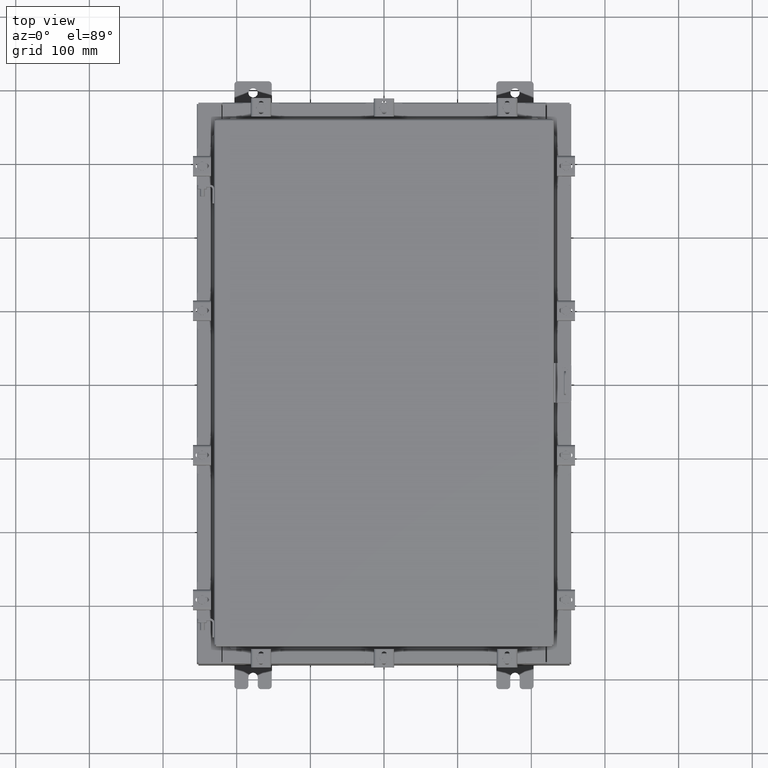
[diagram: clean part render]
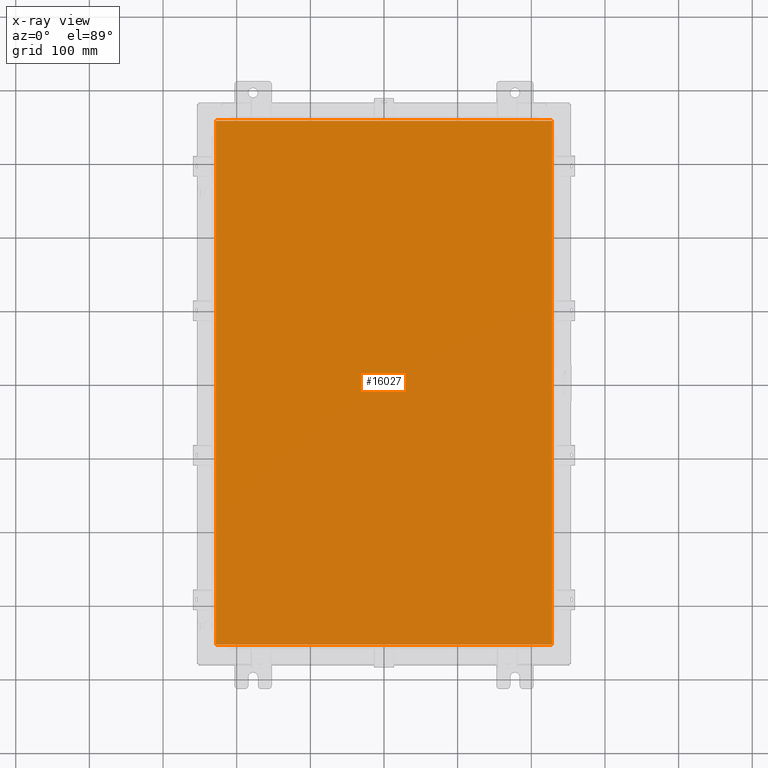
[diagram: x-ray — body ghosted, one internal face saturated and labeled with its STEP entity id]
A machine part, top view, then the same camera in x-ray: the body is ghosted and one INTERNAL B-rep face — a face not visible from any outside direction — is saturated and labeled: STEP entity #16027.
In plain terms, the highlighted planar face has unit normal (0, 0, -1).
Its self-contained STEP definition (entity closure, byte-faithful):
#23 = DIRECTION ( 'NONE',  ( 1.000000000000000000, -0.0000000000000000000, -0.0000000000000000000 ) ) ;
#2522 = CARTESIAN_POINT ( 'NONE',  ( 0.0000000000000000000, 0.0000000000000000000, -0.07470000000000000300 ) ) ;
#2708 = CARTESIAN_POINT ( 'NONE',  ( 8.990300000000001300, -14.00629999999999800, -0.07470000000000000300 ) ) ;
#3035 = CARTESIAN_POINT ( 'NONE',  ( -8.990299999999997700, 14.00630000000000100, -0.07470000000000019700 ) ) ;
#3061 = DIRECTION ( 'NONE',  ( -1.000000000000000000, -0.0000000000000000000, -0.0000000000000000000 ) ) ;
#3554 = DIRECTION ( 'NONE',  ( 0.0000000000000000000, 1.000000000000000000, 0.0000000000000000000 ) ) ;
#4026 = ORIENTED_EDGE ( 'NONE', *, *, #22681, .F. ) ;
#6102 = DIRECTION ( 'NONE',  ( -1.000000000000000000, 0.0000000000000000000, -0.0000000000000000000 ) ) ;
#6956 = AXIS2_PLACEMENT_3D ( 'NONE', #2522, #16801, #6102 ) ;
#7160 = CARTESIAN_POINT ( 'NONE',  ( 8.990300000000001300, -14.00629999999999800, -0.07470000000000019700 ) ) ;
#7797 = VERTEX_POINT ( 'NONE', #14455 ) ;
#9289 = VERTEX_POINT ( 'NONE', #2708 ) ;
#9440 = VECTOR ( 'NONE', #19101, 39.37007874015748100 ) ;
#9695 = VECTOR ( 'NONE', #3554, 39.37007874015748100 ) ;
#10901 = LINE ( 'NONE', #17912, #15114 ) ;
#10984 = EDGE_LOOP ( 'NONE', ( #4026, #21928, #17807, #22001 ) ) ;
#11471 = VERTEX_POINT ( 'NONE', #13308 ) ;
#11726 = VECTOR ( 'NONE', #3061, 39.37007874015748100 ) ;
#11798 = EDGE_CURVE ( 'NONE', #19064, #9289, #10901, .T. ) ;
#11960 = CARTESIAN_POINT ( 'NONE',  ( 8.990300000000001300, 14.00629999999999800, -0.07470000000000019700 ) ) ;
#12289 = LINE ( 'NONE', #11960, #11726 ) ;
#13308 = CARTESIAN_POINT ( 'NONE',  ( 8.990300000000001300, 14.00629999999999800, -0.07470000000000000300 ) ) ;
#13391 = EDGE_CURVE ( 'NONE', #11471, #7797, #12289, .T. ) ;
#13398 = CARTESIAN_POINT ( 'NONE',  ( -8.990299999999996000, -14.00629999999999600, -0.07470000000000000300 ) ) ;
#14179 = LINE ( 'NONE', #3035, #9440 ) ;
#14455 = CARTESIAN_POINT ( 'NONE',  ( -8.990299999999997700, 14.00629999999999800, -0.07470000000000000300 ) ) ;
#15114 = VECTOR ( 'NONE', #23, 39.37007874015748100 ) ;
#16027 = ADVANCED_FACE ( 'NONE', ( #18330 ), #22143, .T. ) ;
#16801 = DIRECTION ( 'NONE',  ( 0.0000000000000000000, 0.0000000000000000000, -1.000000000000000000 ) ) ;
#17807 = ORIENTED_EDGE ( 'NONE', *, *, #22401, .F. ) ;
#17912 = CARTESIAN_POINT ( 'NONE',  ( -8.990299999999996000, -14.00629999999999800, -0.07469999999999800400 ) ) ;
#18330 = FACE_OUTER_BOUND ( 'NONE', #10984, .T. ) ;
#19064 = VERTEX_POINT ( 'NONE', #13398 ) ;
#19101 = DIRECTION ( 'NONE',  ( 0.0000000000000000000, -1.000000000000000000, 0.0000000000000000000 ) ) ;
#21928 = ORIENTED_EDGE ( 'NONE', *, *, #11798, .F. ) ;
#22001 = ORIENTED_EDGE ( 'NONE', *, *, #13391, .F. ) ;
#22143 = PLANE ( 'NONE',  #6956 ) ;
#22401 = EDGE_CURVE ( 'NONE', #7797, #19064, #14179, .T. ) ;
#22681 = EDGE_CURVE ( 'NONE', #9289, #11471, #22862, .T. ) ;
#22862 = LINE ( 'NONE', #7160, #9695 ) ;